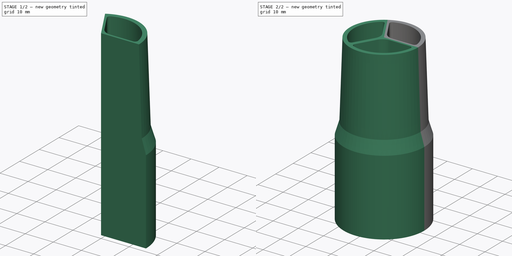
[diagram: build sequence overview — one tinted view per stage of 2, left to right]
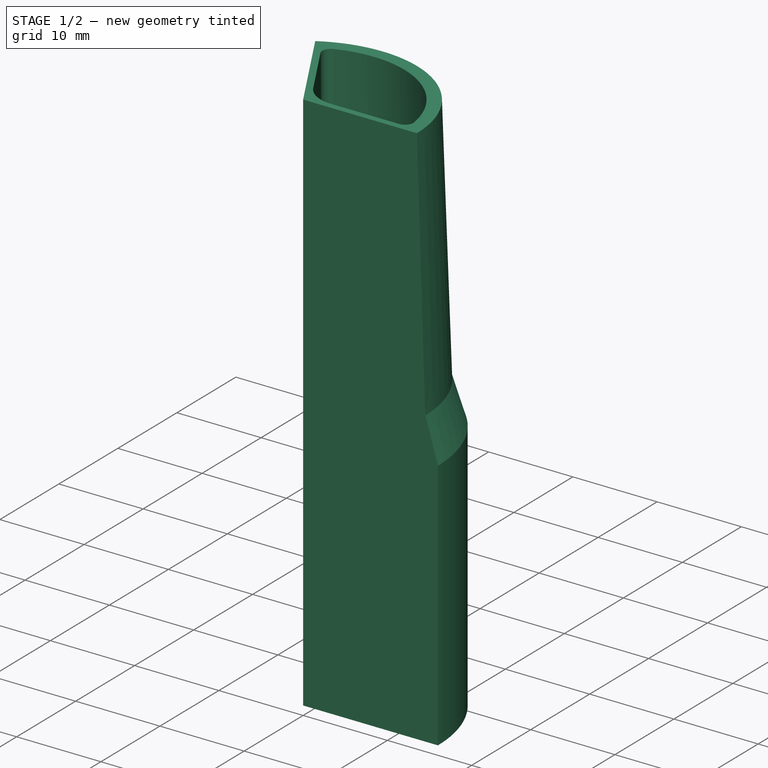
[diagram: stage 1 of 2 — iso view after this stage's code; geometry added in this stage tinted green]
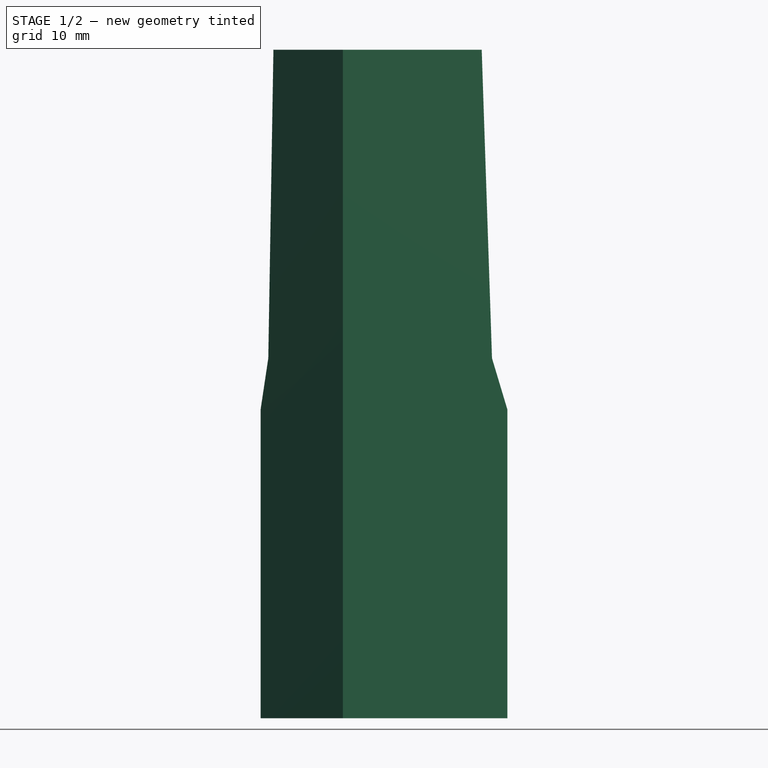
[diagram: stage 1 of 2 — front view after this stage's code; geometry added in this stage tinted green]
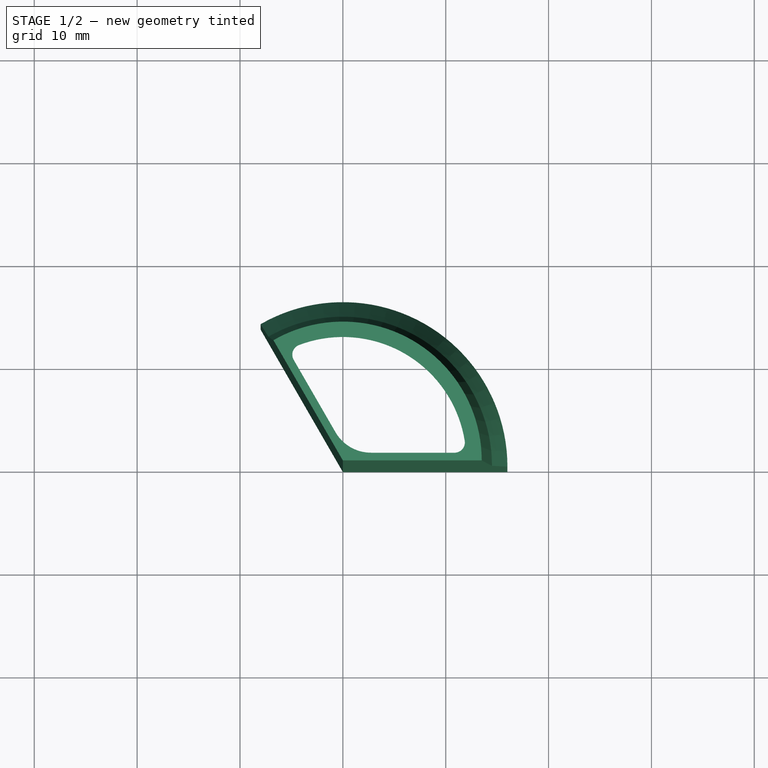
[diagram: stage 1 of 2 — top view after this stage's code; geometry added in this stage tinted green]
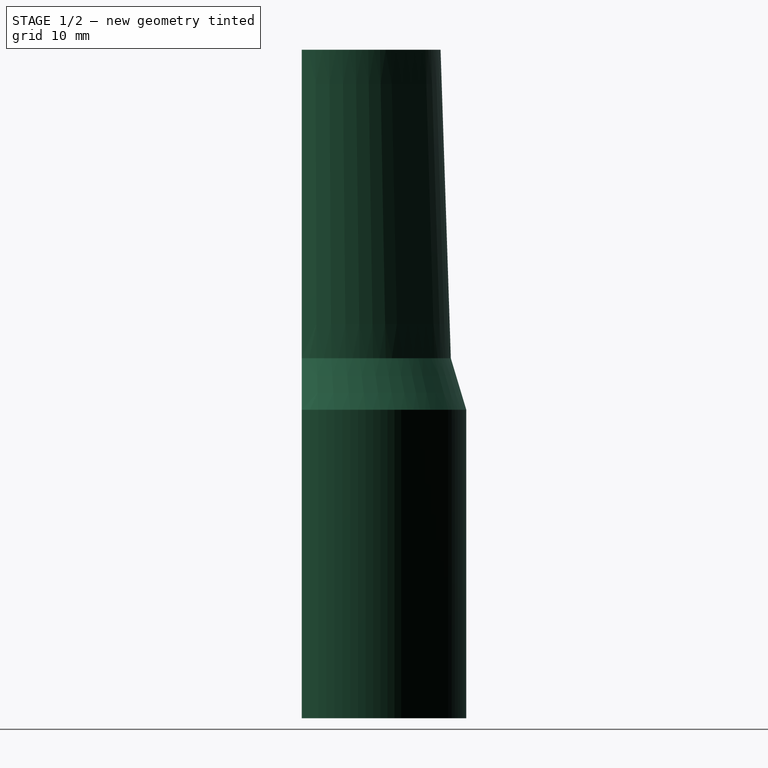
[diagram: stage 1 of 2 — right view after this stage's code; geometry added in this stage tinted green]
FCSTD DOCUMENT  (FreeCAD 0.18R16117 (Git))
Label: Adapter2
License: All rights reserved
LicenseURL: http://en.wikipedia.org/wiki/All_rights_reserved
objects: Sketcher::SketchObject×4, Spreadsheet::Sheet×1, PartDesign::AdditiveLoft×1, PartDesign::PolarPattern×1, PartDesign::Body×1
note: 8 computed .brp shape members not serialized (recipe doc carries the construction recipe); baked Part::Feature solids carry a one-line shape summary decoded from their .brp

FEATURE [Spreadsheet::Sheet] Spreadsheet
  cells = A2=Wandstärke; B2(w)=1.5; A3=Durchmesser 1; B3(d1)=32; A4=Länge 1; B4(len1)=30; A5=Durchmesser 2; B5(d2)=32; A6=Länge 2; B6(len2)=5; A7=Durchmesser 3; B7(d3)=29; A8=Länge 3; B8(len3)=30; A9=Durchmesser 4; B9(d4)=27
FEATURE [Sketcher::SketchObject] Sketch  label="Sketch_d1"
  MapMode = 5
  Support = -> [XY_Plane]
  expr: Constraints[16] = Spreadsheet.w / 2
  expr: Constraints[15] = Spreadsheet.w / 2
  expr: Constraints[18] = Spreadsheet.d1 / 2 - Spreadsheet.w
  expr: Constraints[7] = Spreadsheet.d1 / 2
  sketch-geometry (9):
    g0: LineSegment StartX=0 StartY=0 StartZ=0 EndX=16 EndY=0 EndZ=0
    g1: LineSegment StartX=0 StartY=0 StartZ=0 EndX=-8 EndY=13.8564 EndZ=0
    g2: ArcOfCircle CenterX=0 CenterY=0 CenterZ=0 NormalX=0 NormalY=0 NormalZ=1 AngleXU=0 Radius=16 StartAngle=0 EndAngle=2.0944
    g3: ArcOfCircle CenterX=0 CenterY=0 CenterZ=0 NormalX=0 NormalY=0 NormalZ=1 AngleXU=0 Radius=14.5 StartAngle=0.129995 EndAngle=1.9644
    g4: LineSegment StartX=-0.721688 StartY=2.75 StartZ=0 EndX=-6.04353 EndY=11.9677 EndZ=0
    g5: LineSegment StartX=2.74241 StartY=0.75 StartZ=0 EndX=13.3861 EndY=0.75 EndZ=0
    g6: ArcOfCircle CenterX=13.3861 CenterY=1.75 CenterZ=0 NormalX=0 NormalY=0 NormalZ=1 AngleXU=0 Radius=1 StartAngle=4.71239 EndAngle=6.41318
    g7: ArcOfCircle CenterX=-5.1775 CenterY=12.4677 CenterZ=0 NormalX=0 NormalY=0 NormalZ=1 AngleXU=0 Radius=1 StartAngle=1.9644 EndAngle=3.66519
    g8: ArcOfCircle CenterX=2.74241 CenterY=4.75 CenterZ=0 NormalX=0 NormalY=0 NormalZ=1 AngleXU=0 Radius=4 StartAngle=3.66519 EndAngle=4.71239
  constraints (23):
    c: Coincident(g0,g-1)
    c: PointOnObject(g0,g-1)
    c: Coincident(g1,g0)
    c: Angle(g0,g1) = 2.0944
    c: Coincident(g2,g0)
    c: Coincident(g2,g1)
    c: Coincident(g0,g2)
    c: Radius(g2) = 16
    c: Coincident(g3,g0)
    c: Horizontal(g5)
    c: Tangent(g6,g5) = -1.5708
    c: Tangent(g3,g6) = -1.5708
    c: Radius(g6) = 1
    c: Tangent(g3,g7) = -1.5708
    c: Tangent(g7,g4) = 1.5708
    c: Distance(g4,g1) = 0.75
    c: Distance(g5,g0) = 0.75
    c: Parallel(g4,g1)
    c: Radius(g3) = 14.5
    c: Tangent(g4,g8) = 1.5708
    c: Tangent(g5,g8) = -1.5708
    c: Radius(g8) = 4
    c: Radius(g7) = 1
FEATURE [Sketcher::SketchObject] Sketch001  label="Sketch_d2"
  AttachmentOffset = pos=(0,0,30) rot=(0,0,1;0rad)
  MapMode = 5
  Placement = pos=(0,0,30) rot=(0,0,1;0rad)
  Support = -> [XY_Plane]
  expr: AttachmentOffset.Base.z = Spreadsheet.len1
  expr: Constraints[16] = Spreadsheet.w / 2
  expr: Constraints[15] = Spreadsheet.w / 2
  expr: Constraints[18] = Spreadsheet.d2 / 2 - Spreadsheet.w
  expr: Constraints[7] = Spreadsheet.d2 / 2
  sketch-geometry (9):
    g0: LineSegment StartX=0 StartY=0 StartZ=0 EndX=16 EndY=0 EndZ=0
    g1: LineSegment StartX=0 StartY=0 StartZ=0 EndX=-8 EndY=13.8564 EndZ=0
    g2: ArcOfCircle CenterX=0 CenterY=0 CenterZ=0 NormalX=0 NormalY=0 NormalZ=1 AngleXU=0 Radius=16 StartAngle=0 EndAngle=2.0944
    g3: ArcOfCircle CenterX=0 CenterY=0 CenterZ=0 NormalX=0 NormalY=0 NormalZ=1 AngleXU=0 Radius=14.5 StartAngle=0.129995 EndAngle=1.9644
    g4: LineSegment StartX=-0.721688 StartY=2.75 StartZ=0 EndX=-6.04353 EndY=11.9677 EndZ=0
    g5: LineSegment StartX=2.74241 StartY=0.75 StartZ=0 EndX=13.3861 EndY=0.75 EndZ=0
    g6: ArcOfCircle CenterX=13.3861 CenterY=1.75 CenterZ=0 NormalX=0 NormalY=0 NormalZ=1 AngleXU=0 Radius=1 StartAngle=4.71239 EndAngle=6.41318
    g7: ArcOfCircle CenterX=-5.1775 CenterY=12.4677 CenterZ=0 NormalX=0 NormalY=0 NormalZ=1 AngleXU=0 Radius=1 StartAngle=1.9644 EndAngle=3.66519
    g8: ArcOfCircle CenterX=2.74241 CenterY=4.75 CenterZ=0 NormalX=0 NormalY=0 NormalZ=1 AngleXU=0 Radius=4 StartAngle=3.66519 EndAngle=4.71239
  constraints (23):
    c: Coincident(g0,g-1)
    c: PointOnObject(g0,g-1)
    c: Coincident(g1,g0)
    c: Angle(g0,g1) = 2.0944
    c: Coincident(g2,g0)
    c: Coincident(g2,g1)
    c: Coincident(g0,g2)
    c: Radius(g2) = 16
    c: Coincident(g3,g0)
    c: Horizontal(g5)
    c: Tangent(g6,g5) = -1.5708
    c: Tangent(g3,g6) = -1.5708
    c: Radius(g6) = 1
    c: Tangent(g3,g7) = -1.5708
    c: Tangent(g7,g4) = 1.5708
    c: Distance(g4,g1) = 0.75
    c: Distance(g5,g0) = 0.75
    c: Parallel(g4,g1)
    c: Radius(g3) = 14.5
    c: Tangent(g4,g8) = 1.5708
    c: Tangent(g5,g8) = -1.5708
    c: Radius(g8) = 4
    c: Radius(g7) = 1
FEATURE [Sketcher::SketchObject] Sketch002  label="Sketch_d3"
  AttachmentOffset = pos=(0,0,35) rot=(0,0,1;0rad)
  MapMode = 5
  Placement = pos=(0,0,35) rot=(0,0,1;0rad)
  Support = -> [XY_Plane]
  expr: AttachmentOffset.Base.z = Spreadsheet.len1 + Spreadsheet.len2
  expr: Constraints[16] = Spreadsheet.w / 2
  expr: Constraints[15] = Spreadsheet.w / 2
  expr: Constraints[18] = Spreadsheet.d3 / 2 - Spreadsheet.w
  expr: Constraints[7] = Spreadsheet.d3 / 2
  sketch-geometry (9):
    g0: LineSegment StartX=0 StartY=0 StartZ=0 EndX=14.5 EndY=0 EndZ=0
    g1: LineSegment StartX=0 StartY=0 StartZ=0 EndX=-7.25 EndY=12.5574 EndZ=0
    g2: ArcOfCircle CenterX=0 CenterY=0 CenterZ=0 NormalX=0 NormalY=0 NormalZ=1 AngleXU=0 Radius=14.5 StartAngle=0 EndAngle=2.0944
    g3: ArcOfCircle CenterX=0 CenterY=0 CenterZ=0 NormalX=0 NormalY=0 NormalZ=1 AngleXU=0 Radius=13 StartAngle=0.146355 EndAngle=1.94804
    g4: LineSegment StartX=-0.721688 StartY=2.75 StartZ=0 EndX=-5.28634 EndY=10.6562 EndZ=0
    g5: LineSegment StartX=2.74241 StartY=0.75 StartZ=0 EndX=11.8717 EndY=0.75 EndZ=0
    g6: ArcOfCircle CenterX=11.8717 CenterY=1.75 CenterZ=0 NormalX=0 NormalY=0 NormalZ=1 AngleXU=0 Radius=1 StartAngle=4.71239 EndAngle=6.42954
    g7: ArcOfCircle CenterX=-4.42031 CenterY=11.1562 CenterZ=0 NormalX=0 NormalY=0 NormalZ=1 AngleXU=0 Radius=1 StartAngle=1.94804 EndAngle=3.66519
    g8: ArcOfCircle CenterX=2.74241 CenterY=4.75 CenterZ=0 NormalX=0 NormalY=0 NormalZ=1 AngleXU=0 Radius=4 StartAngle=3.66519 EndAngle=4.71239
  constraints (23):
    c: Coincident(g0,g-1)
    c: PointOnObject(g0,g-1)
    c: Coincident(g1,g0)
    c: Angle(g0,g1) = 2.0944
    c: Coincident(g2,g0)
    c: Coincident(g2,g1)
    c: Coincident(g0,g2)
    c: Radius(g2) = 14.5
    c: Coincident(g3,g0)
    c: Horizontal(g5)
    c: Tangent(g6,g5) = -1.5708
    c: Tangent(g3,g6) = -1.5708
    c: Radius(g6) = 1
    c: Tangent(g3,g7) = -1.5708
    c: Tangent(g7,g4) = 1.5708
    c: Distance(g4,g1) = 0.75
    c: Distance(g5,g0) = 0.75
    c: Parallel(g4,g1)
    c: Radius(g3) = 13
    c: Tangent(g4,g8) = 1.5708
    c: Tangent(g5,g8) = -1.5708
    c: Radius(g8) = 4
    c: Radius(g7) = 1
FEATURE [Sketcher::SketchObject] Sketch003  label="Sketch_d4"
  AttachmentOffset = pos=(0,0,65) rot=(0,0,1;0rad)
  MapMode = 5
  Placement = pos=(0,0,65) rot=(0,0,1;0rad)
  Support = -> [XY_Plane]
  expr: AttachmentOffset.Base.z = Spreadsheet.len1 + Spreadsheet.len2 + Spreadsheet.len3
  expr: Constraints[16] = Spreadsheet.w / 2
  expr: Constraints[15] = Spreadsheet.w / 2
  expr: Constraints[18] = Spreadsheet.d4 / 2 - Spreadsheet.w
  expr: Constraints[7] = Spreadsheet.d4 / 2
  sketch-geometry (9):
    g0: LineSegment StartX=0 StartY=0 StartZ=0 EndX=13.5 EndY=0 EndZ=0
    g1: LineSegment StartX=0 StartY=0 StartZ=0 EndX=-6.75 EndY=11.6913 EndZ=0
    g2: ArcOfCircle CenterX=0 CenterY=0 CenterZ=0 NormalX=0 NormalY=0 NormalZ=1 AngleXU=0 Radius=13.5 StartAngle=0 EndAngle=2.0944
    g3: ArcOfCircle CenterX=0 CenterY=0 CenterZ=0 NormalX=0 NormalY=0 NormalZ=1 AngleXU=0 Radius=12 StartAngle=0.15977 EndAngle=1.93463
    g4: LineSegment StartX=-0.721688 StartY=2.75 StartZ=0 EndX=-4.78043 EndY=9.77995 EndZ=0
    g5: LineSegment StartX=2.74241 StartY=0.75 StartZ=0 EndX=10.8599 EndY=0.75 EndZ=0
    g6: ArcOfCircle CenterX=10.8599 CenterY=1.75 CenterZ=0 NormalX=0 NormalY=0 NormalZ=1 AngleXU=0 Radius=1 StartAngle=4.71239 EndAngle=6.44296
    g7: ArcOfCircle CenterX=-3.91441 CenterY=10.28 CenterZ=0 NormalX=0 NormalY=0 NormalZ=1 AngleXU=0 Radius=1 StartAngle=1.93463 EndAngle=3.66519
    g8: ArcOfCircle CenterX=2.74241 CenterY=4.75 CenterZ=0 NormalX=0 NormalY=0 NormalZ=1 AngleXU=0 Radius=4 StartAngle=3.66519 EndAngle=4.71239
  constraints (23):
    c: Coincident(g0,g-1)
    c: PointOnObject(g0,g-1)
    c: Coincident(g1,g0)
    c: Angle(g0,g1) = 2.0944
    c: Coincident(g2,g0)
    c: Coincident(g2,g1)
    c: Coincident(g0,g2)
    c: Radius(g2) = 13.5
    c: Coincident(g3,g0)
    c: Horizontal(g5)
    c: Tangent(g6,g5) = -1.5708
    c: Tangent(g3,g6) = -1.5708
    c: Radius(g6) = 1
    c: Tangent(g3,g7) = -1.5708
    c: Tangent(g7,g4) = 1.5708
    c: Distance(g4,g1) = 0.75
    c: Distance(g5,g0) = 0.75
    c: Parallel(g4,g1)
    c: Radius(g3) = 12
    c: Tangent(g4,g8) = 1.5708
    c: Tangent(g5,g8) = -1.5708
    c: Radius(g8) = 4
    c: Radius(g7) = 1
FEATURE [PartDesign::AdditiveLoft] AdditiveLoft
  Closed = false
  Profile = -> Sketch
  Ruled = true
  Sections = -> [Sketch001,Sketch002,Sketch003]
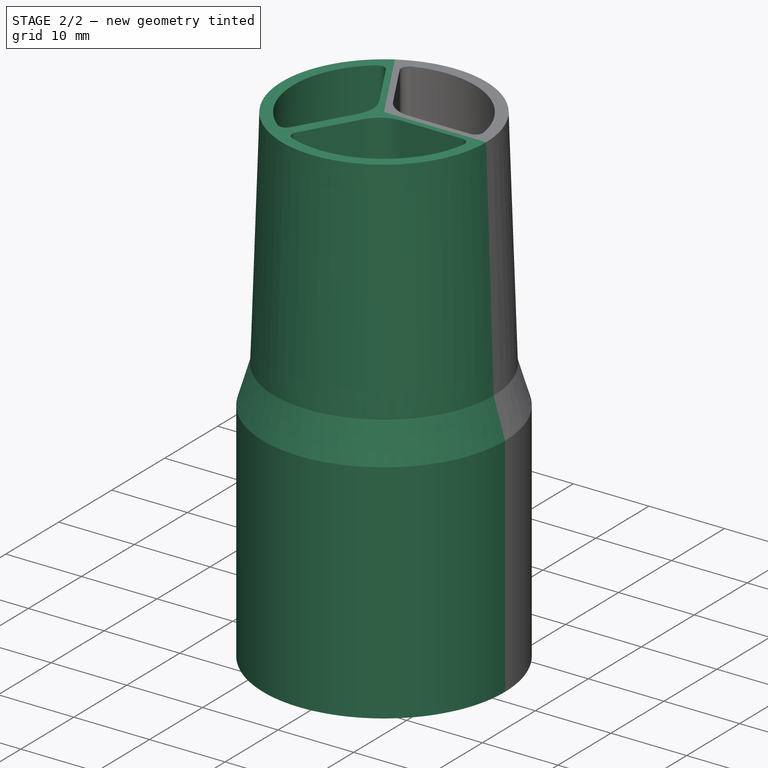
[diagram: stage 2 of 2 — iso view after this stage's code; geometry added in this stage tinted green]
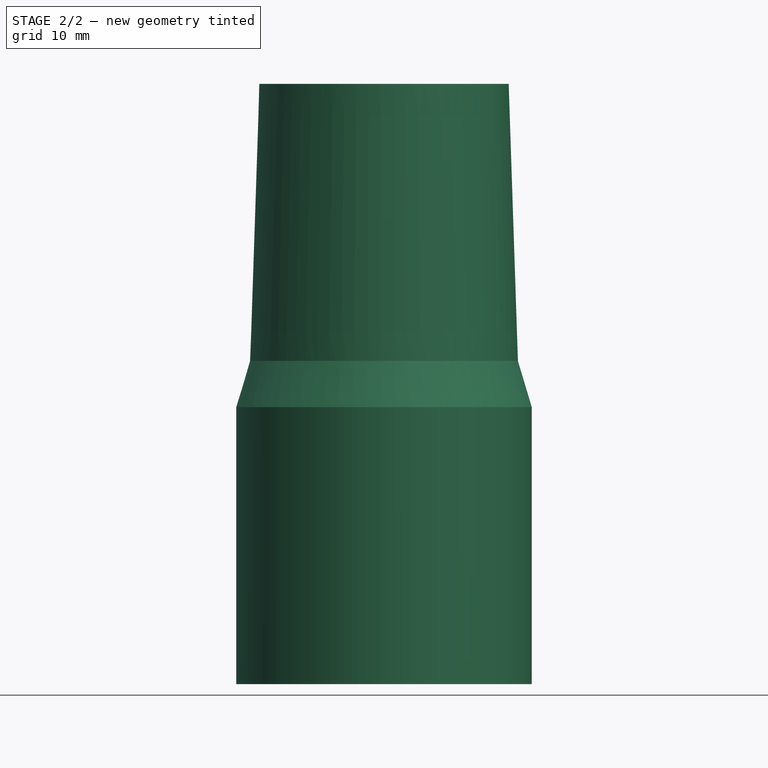
[diagram: stage 2 of 2 — front view after this stage's code; geometry added in this stage tinted green]
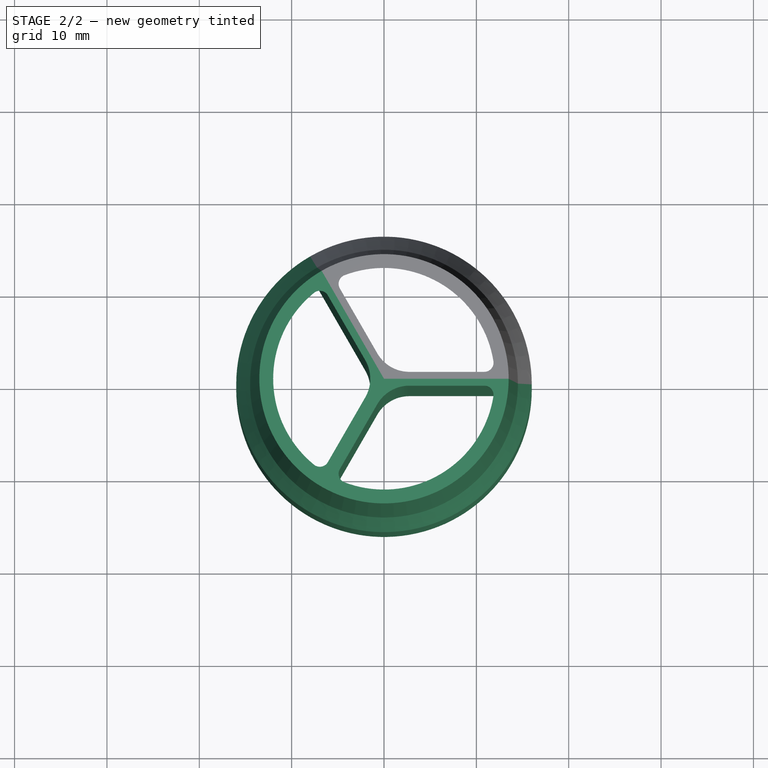
[diagram: stage 2 of 2 — top view after this stage's code; geometry added in this stage tinted green]
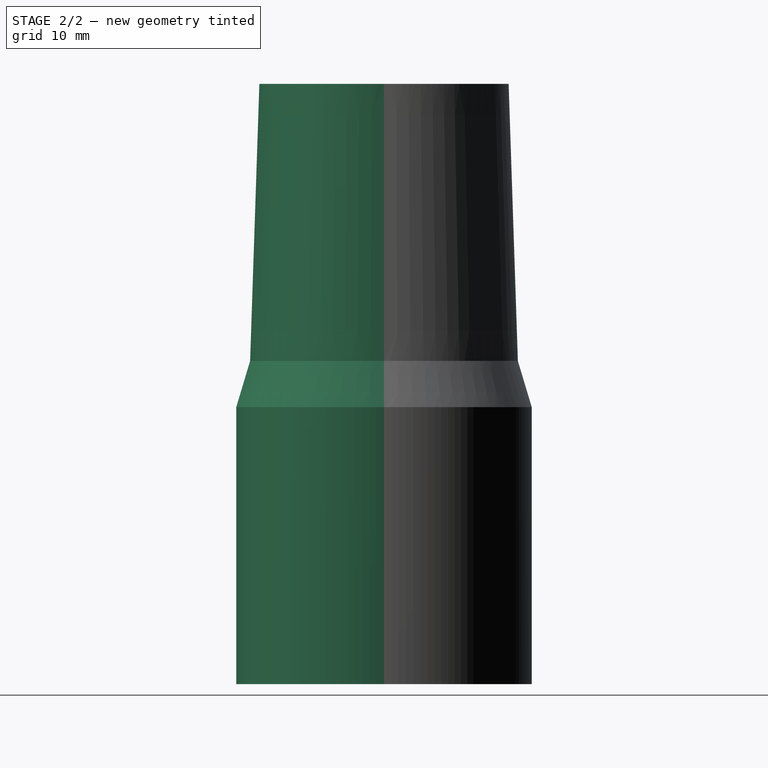
[diagram: stage 2 of 2 — right view after this stage's code; geometry added in this stage tinted green]
FEATURE [PartDesign::PolarPattern] PolarPattern
  Angle = 360
  Axis = -> Sketch [N_Axis]
  BaseFeature = -> AdditiveLoft
  Occurrences = 3
  Originals = -> [AdditiveLoft]
FEATURE [PartDesign::Body] Body  label="body"
  Group = -> [Sketch,Sketch001,Sketch002,Sketch003,AdditiveLoft,PolarPattern]
  Origin = -> Origin
  Tip = -> PolarPattern
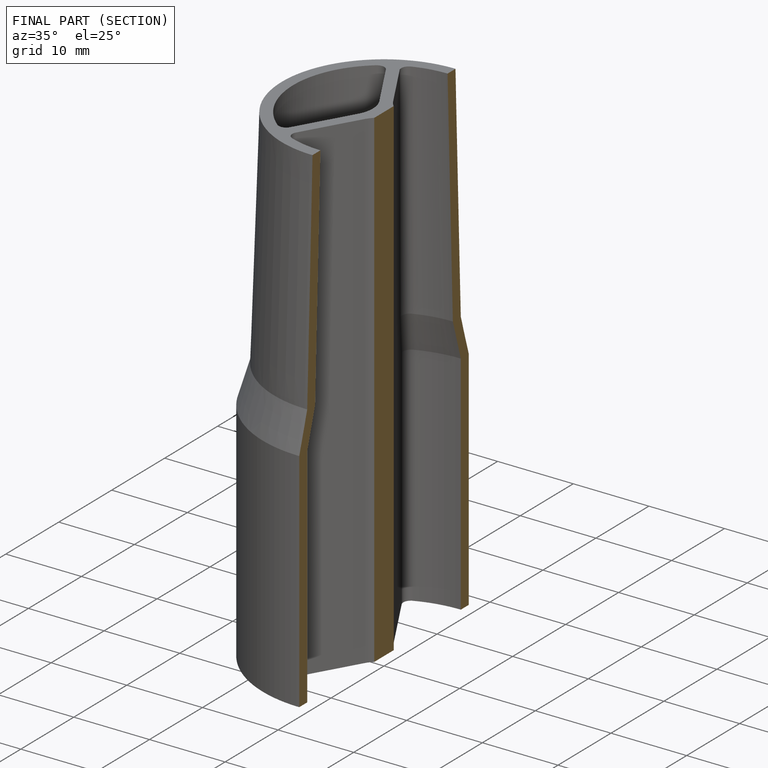
[diagram: finished part — half-section view (interior)]
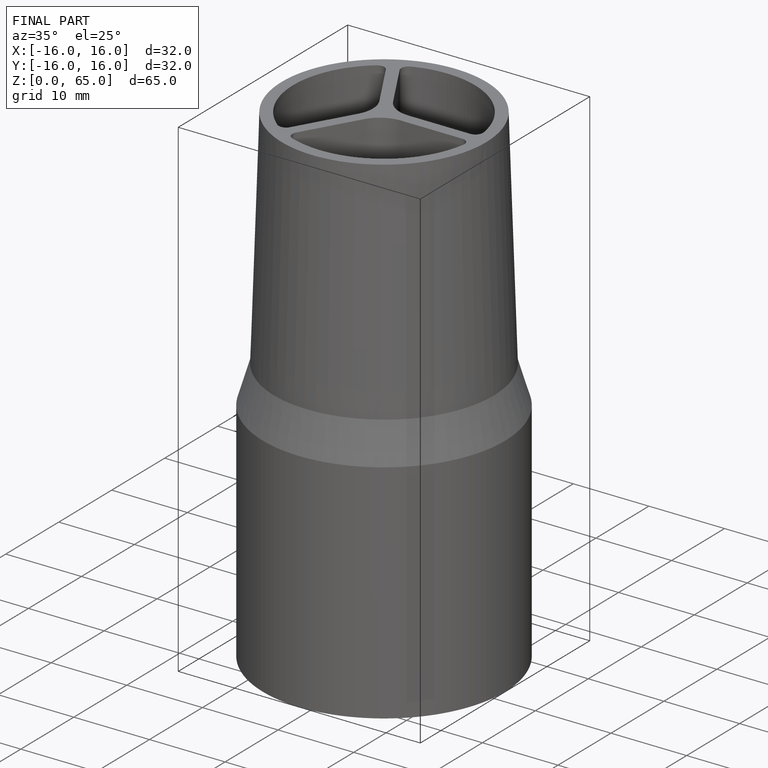
[diagram: finished part — iso view with bounding-box wireframe]
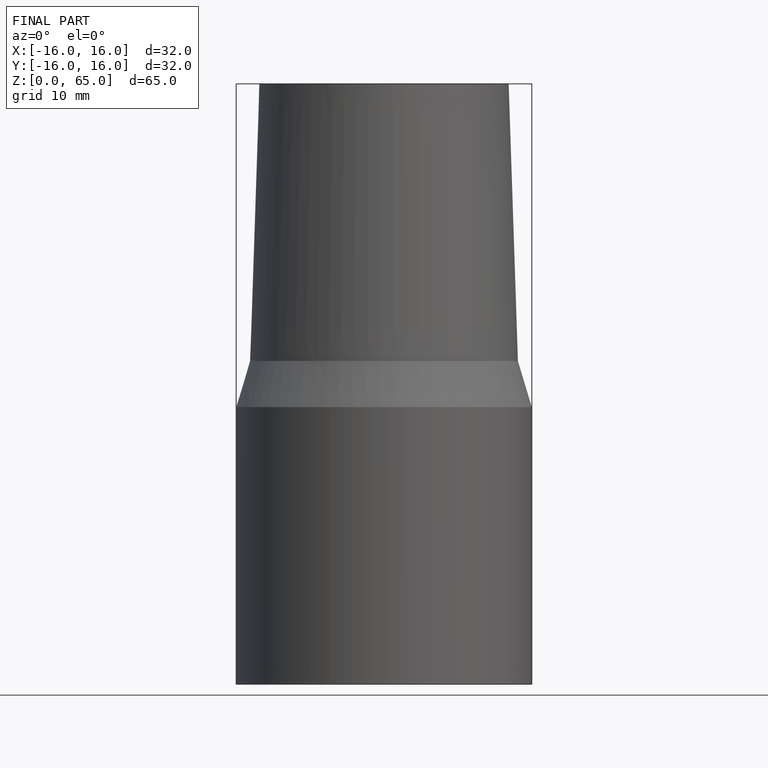
[diagram: finished part — front view with bounding-box wireframe]
